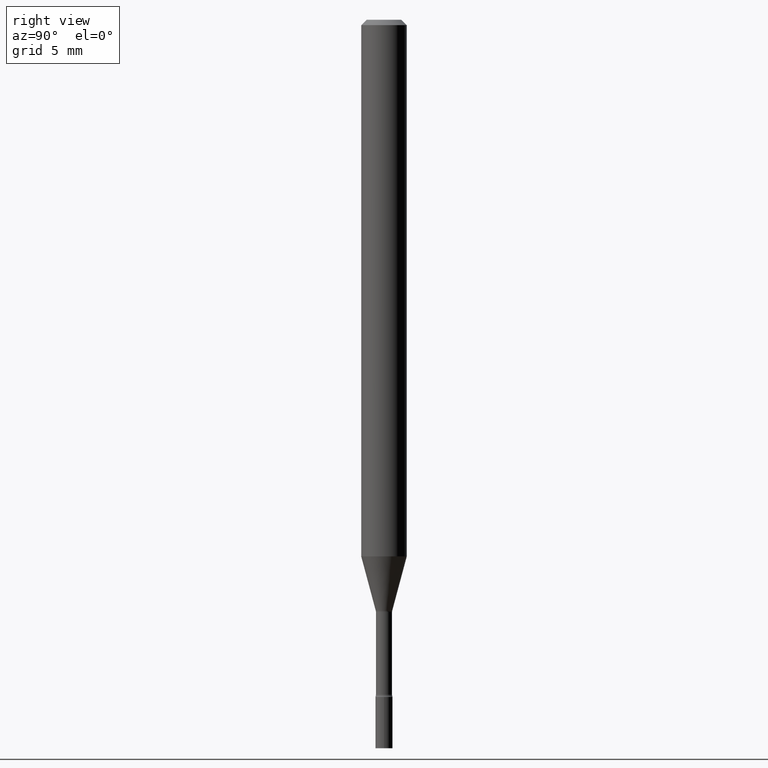
[diagram: clean part render]
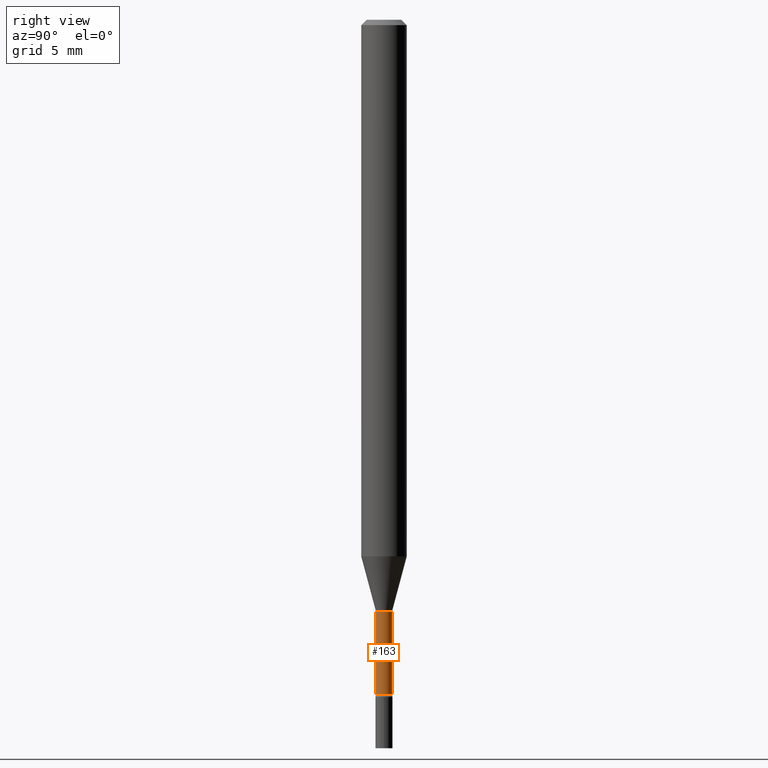
[diagram: same view with one face highlighted and labeled with its STEP entity id]
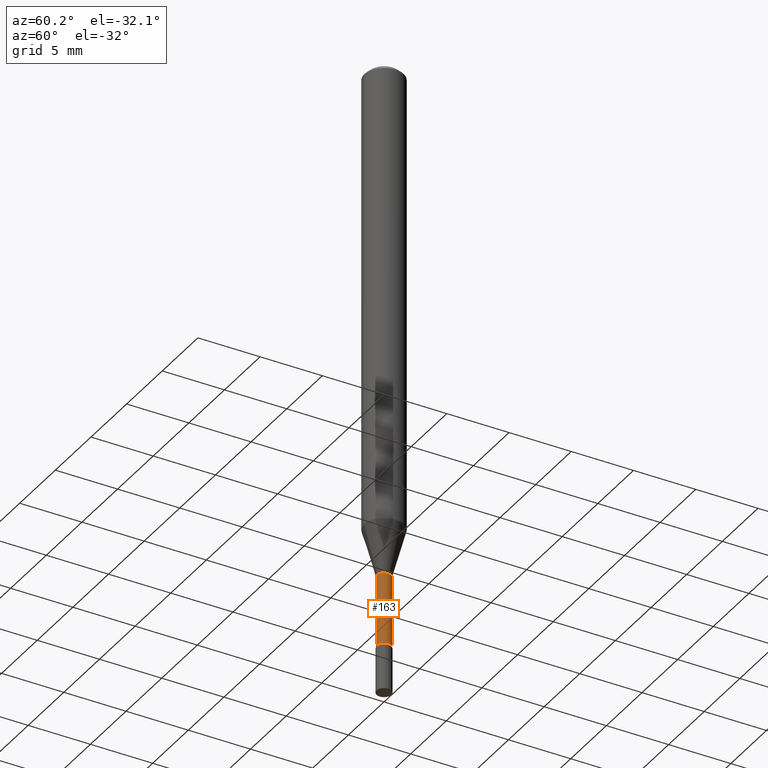
[diagram: same view with one face highlighted and labeled with its STEP entity id]
A machine part, right view. The second image highlights one B-rep face of the part: STEP entity #163.
A second angle (auxiliary view) of the same face is appended — the face is thin or edge-on in the first view.
In plain terms, the highlighted cylindrical surface (edge-blend (fillet) strip) has radius 0.5613 mm, axis along (-0, 0, 1).
Its self-contained STEP definition (entity closure, byte-faithful):
#3 = DIRECTION ( 'NONE',  ( -6.982962677686265922E-15, -1.000000000000000000, 0.000000000000000000 ) ) ;
#12 = EDGE_CURVE ( 'NONE', #286, #381, #119, .T. ) ;
#14 = EDGE_CURVE ( 'NONE', #78, #381, #494, .T. ) ;
#19 = VECTOR ( 'NONE', #415, 39.37007874015748143 ) ;
#27 = CARTESIAN_POINT ( 'NONE',  ( 4.530670406511994597E-29, -6.468544740734887756E-15, -1.852672283192177582 ) ) ;
#51 = FACE_OUTER_BOUND ( 'NONE', #170, .T. ) ;
#62 = CARTESIAN_POINT ( 'NONE',  ( 1.570299446030275612E-16, 0.02209999999999431863, -1.625974787463811078 ) ) ;
#78 = VERTEX_POINT ( 'NONE', #115 ) ;
#85 = DIRECTION ( 'NONE',  ( -6.982962677686265922E-15, -1.000000000000000000, 3.491467325019568091E-15 ) ) ;
#87 = EDGE_CURVE ( 'NONE', #192, #78, #471, .T. ) ;
#115 = CARTESIAN_POINT ( 'NONE',  ( 1.620037437533484049E-16, 0.02209999999999359352, -1.852672283192177582 ) ) ;
#119 = CIRCLE ( 'NONE', #334, 0.02209999999999999812 ) ;
#127 = CARTESIAN_POINT ( 'NONE',  ( 1.570299446029823003E-16, 0.02210000000000002587, -7.716142788293254101E-17 ) ) ;
#136 = ORIENTED_EDGE ( 'NONE', *, *, #12, .F. ) ;
#163 = ADVANCED_FACE ( 'NONE', ( #51 ), #212, .T. ) ;
#170 = EDGE_LOOP ( 'NONE', ( #314, #393, #136, #283 ) ) ;
#172 = CARTESIAN_POINT ( 'NONE',  ( -1.543234751768266986E-16, -0.02210000000000567413, -1.625974787463811078 ) ) ;
#192 = VERTEX_POINT ( 'NONE', #484 ) ;
#212 = CYLINDRICAL_SURFACE ( 'NONE', #388, 0.02210000000000002587 ) ;
#248 = AXIS2_PLACEMENT_3D ( 'NONE', #27, #350, #285 ) ;
#283 = ORIENTED_EDGE ( 'NONE', *, *, #468, .F. ) ;
#285 = DIRECTION ( 'NONE',  ( -6.982962677686265922E-15, -1.000000000000000000, 0.000000000000000000 ) ) ;
#286 = VERTEX_POINT ( 'NONE', #172 ) ;
#296 = DIRECTION ( 'NONE',  ( -2.445478591985837749E-29, 3.491467325019568091E-15, 1.000000000000000000 ) ) ;
#314 = ORIENTED_EDGE ( 'NONE', *, *, #87, .T. ) ;
#334 = AXIS2_PLACEMENT_3D ( 'NONE', #368, #489, #3 ) ;
#350 = DIRECTION ( 'NONE',  ( -2.445478591985838029E-29, 3.491467325019567696E-15, 1.000000000000000000 ) ) ;
#368 = CARTESIAN_POINT ( 'NONE',  ( 3.976286533851473085E-29, -5.677037841735531897E-15, -1.625974787463811078 ) ) ;
#369 = CARTESIAN_POINT ( 'NONE',  ( 0.000000000000000000, 0.000000000000000000, 0.000000000000000000 ) ) ;
#381 = VERTEX_POINT ( 'NONE', #62 ) ;
#388 = AXIS2_PLACEMENT_3D ( 'NONE', #369, #452, #85 ) ;
#393 = ORIENTED_EDGE ( 'NONE', *, *, #14, .T. ) ;
#411 = VECTOR ( 'NONE', #296, 39.37007874015748143 ) ;
#415 = DIRECTION ( 'NONE',  ( -2.445478591985837749E-29, 3.491467325019568091E-15, 1.000000000000000000 ) ) ;
#421 = CARTESIAN_POINT ( 'NONE',  ( -1.543234751768666594E-16, -0.02210000000000002587, 7.716142788293254101E-17 ) ) ;
#452 = DIRECTION ( 'NONE',  ( -2.445478591985838029E-29, 3.491467325019567696E-15, 1.000000000000000000 ) ) ;
#468 = EDGE_CURVE ( 'NONE', #192, #286, #508, .T. ) ;
#471 = CIRCLE ( 'NONE', #248, 0.02210000000000006057 ) ;
#484 = CARTESIAN_POINT ( 'NONE',  ( -1.543234751768215957E-16, -0.02210000000000652762, -1.852672283192177582 ) ) ;
#489 = DIRECTION ( 'NONE',  ( -2.445478591985838029E-29, 3.491467325019567696E-15, 1.000000000000000000 ) ) ;
#494 = LINE ( 'NONE', #127, #411 ) ;
#508 = LINE ( 'NONE', #421, #19 ) ;